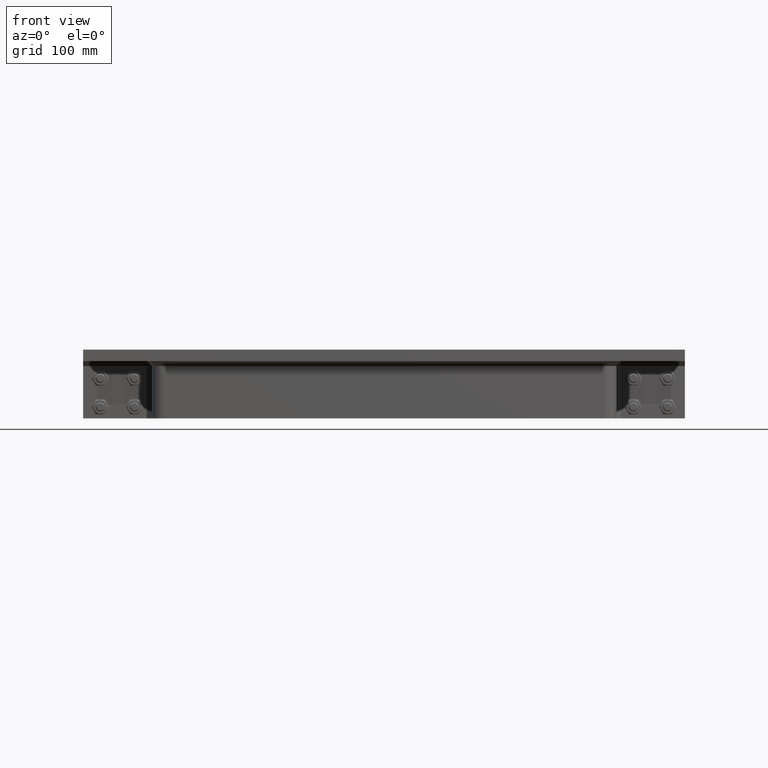
[diagram: clean part render]
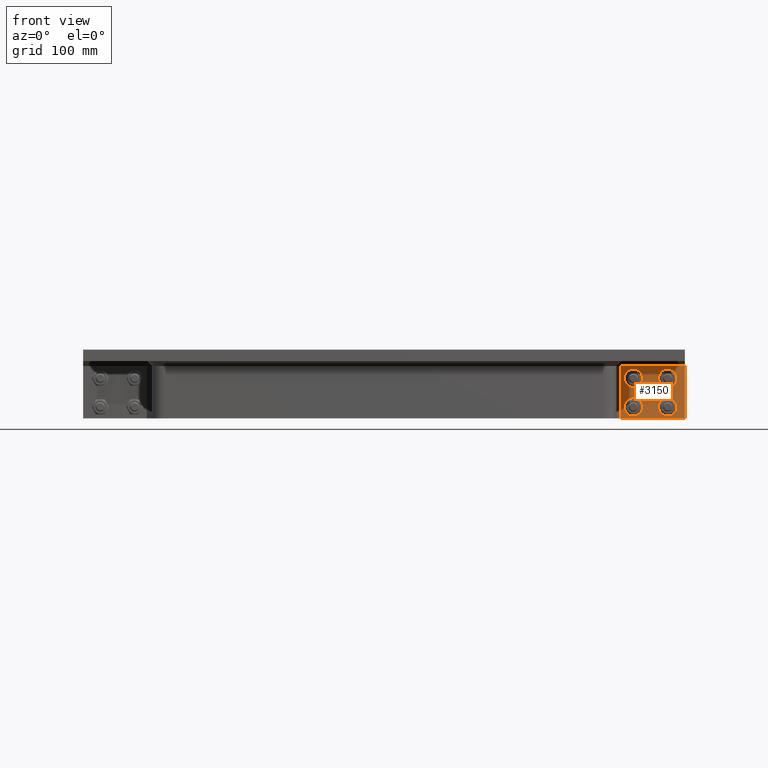
[diagram: same view with one face highlighted and labeled with its STEP entity id]
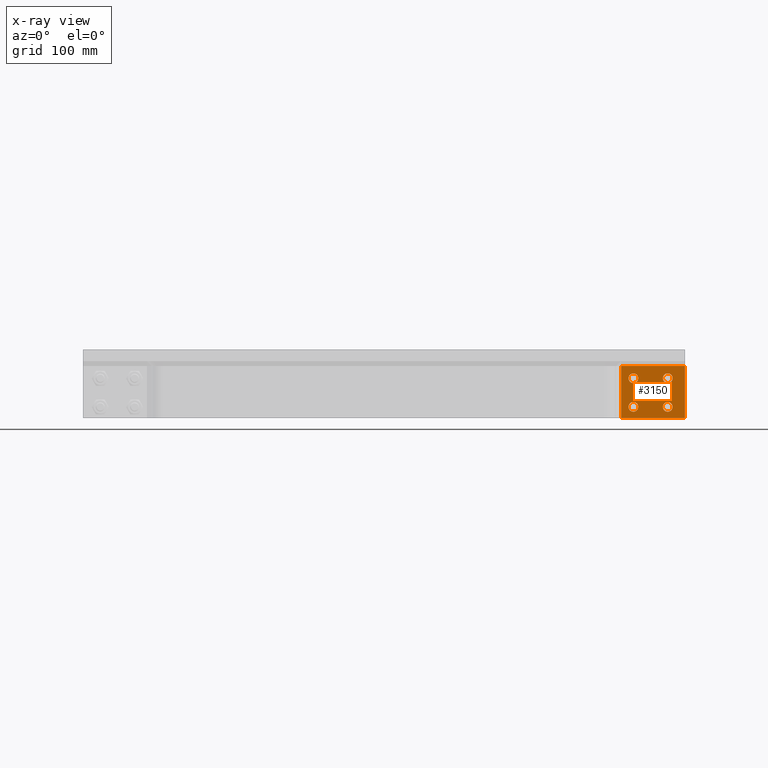
[diagram: x-ray of the same camera — body ghosted, the highlighted face saturated]
A machine part, front view. The second image highlights one B-rep face of the part: STEP entity #3150.
The next image is the same camera in x-ray: the body ghosted, the highlighted face saturated — about 0% of this face is hidden behind the body in this view.
In plain terms, the highlighted planar face has unit normal (0, -1, 0).
Its self-contained STEP definition (entity closure, byte-faithful):
#267=FACE_BOUND('',#749,.T.);
#268=FACE_BOUND('',#750,.T.);
#269=FACE_BOUND('',#751,.T.);
#270=FACE_BOUND('',#752,.T.);
#390=CIRCLE('',#3567,4.25000000000007);
#392=CIRCLE('',#3570,4.25000000000007);
#394=CIRCLE('',#3573,4.25000000000007);
#396=CIRCLE('',#3576,4.25000000000007);
#557=FACE_OUTER_BOUND('',#748,.T.);
#748=EDGE_LOOP('',(#2311,#2312,#2313,#2314));
#749=EDGE_LOOP('',(#2315));
#750=EDGE_LOOP('',(#2316));
#751=EDGE_LOOP('',(#2317));
#752=EDGE_LOOP('',(#2318));
#1009=LINE('',#4885,#1254);
#1013=LINE('',#4892,#1258);
#1035=LINE('',#5013,#1280);
#1036=LINE('',#5014,#1281);
#1254=VECTOR('',#3922,10.);
#1258=VECTOR('',#3928,10.);
#1280=VECTOR('',#4060,10.);
#1281=VECTOR('',#4061,10.);
#1484=VERTEX_POINT('',#4849);
#1495=VERTEX_POINT('',#4883);
#1496=VERTEX_POINT('',#4888);
#1532=VERTEX_POINT('',#4982);
#1534=VERTEX_POINT('',#4988);
#1536=VERTEX_POINT('',#4994);
#1538=VERTEX_POINT('',#5000);
#1541=VERTEX_POINT('',#5012);
#1780=EDGE_CURVE('',#1495,#1484,#1009,.T.);
#1784=EDGE_CURVE('',#1484,#1496,#1013,.T.);
#1828=EDGE_CURVE('',#1532,#1532,#390,.T.);
#1831=EDGE_CURVE('',#1534,#1534,#392,.T.);
#1834=EDGE_CURVE('',#1536,#1536,#394,.T.);
#1837=EDGE_CURVE('',#1538,#1538,#396,.T.);
#1842=EDGE_CURVE('',#1541,#1495,#1035,.T.);
#1843=EDGE_CURVE('',#1496,#1541,#1036,.T.);
#2311=ORIENTED_EDGE('',*,*,#1780,.F.);
#2312=ORIENTED_EDGE('',*,*,#1842,.F.);
#2313=ORIENTED_EDGE('',*,*,#1843,.F.);
#2314=ORIENTED_EDGE('',*,*,#1784,.F.);
#2315=ORIENTED_EDGE('',*,*,#1828,.T.);
#2316=ORIENTED_EDGE('',*,*,#1831,.T.);
#2317=ORIENTED_EDGE('',*,*,#1834,.T.);
#2318=ORIENTED_EDGE('',*,*,#1837,.T.);
#3042=PLANE('',#3581);
#3150=ADVANCED_FACE('',(#557,#267,#268,#269,#270),#3042,.T.);
#3567=AXIS2_PLACEMENT_3D('',#4984,#4025,#4026);
#3570=AXIS2_PLACEMENT_3D('',#4990,#4032,#4033);
#3573=AXIS2_PLACEMENT_3D('',#4996,#4039,#4040);
#3576=AXIS2_PLACEMENT_3D('',#5002,#4046,#4047);
#3581=AXIS2_PLACEMENT_3D('',#5011,#4058,#4059);
#3922=DIRECTION('',(0.,0.,1.));
#3928=DIRECTION('',(1.,0.,0.));
#4025=DIRECTION('center_axis',(0.,1.,0.));
#4026=DIRECTION('ref_axis',(-1.,0.,0.));
#4032=DIRECTION('center_axis',(0.,1.,0.));
#4033=DIRECTION('ref_axis',(-1.,0.,0.));
#4039=DIRECTION('center_axis',(0.,1.,0.));
#4040=DIRECTION('ref_axis',(-1.,0.,0.));
#4046=DIRECTION('center_axis',(0.,1.,0.));
#4047=DIRECTION('ref_axis',(-1.,0.,0.));
#4058=DIRECTION('center_axis',(0.,-1.,0.));
#4059=DIRECTION('ref_axis',(-1.,0.,0.));
#4060=DIRECTION('',(-1.,0.,0.));
#4061=DIRECTION('',(0.,0.,-1.));
#4849=CARTESIAN_POINT('',(207.05,98.5000000000001,-14.3));
#4883=CARTESIAN_POINT('',(207.05,98.5000000000001,-60.));
#4885=CARTESIAN_POINT('',(207.05,98.5000000000001,0.));
#4888=CARTESIAN_POINT('',(262.75,98.5000000000001,-14.3));
#4892=CARTESIAN_POINT('',(131.375,98.5000000000001,-14.3));
#4982=CARTESIAN_POINT('',(252.,98.5000000000001,-50.));
#4984=CARTESIAN_POINT('Origin',(247.75,98.5000000000001,-50.));
#4988=CARTESIAN_POINT('',(222.,98.5000000000001,-25.));
#4990=CARTESIAN_POINT('Origin',(217.75,98.5000000000001,-25.));
#4994=CARTESIAN_POINT('',(252.,98.5000000000001,-25.));
#4996=CARTESIAN_POINT('Origin',(247.75,98.5000000000001,-25.));
#5000=CARTESIAN_POINT('',(222.,98.5000000000001,-50.));
#5002=CARTESIAN_POINT('Origin',(217.75,98.5000000000001,-50.));
#5011=CARTESIAN_POINT('Origin',(262.75,98.5000000000001,0.));
#5012=CARTESIAN_POINT('',(262.75,98.5000000000001,-60.));
#5013=CARTESIAN_POINT('',(192.75,98.5000000000001,-60.));
#5014=CARTESIAN_POINT('',(262.75,98.5000000000001,0.));